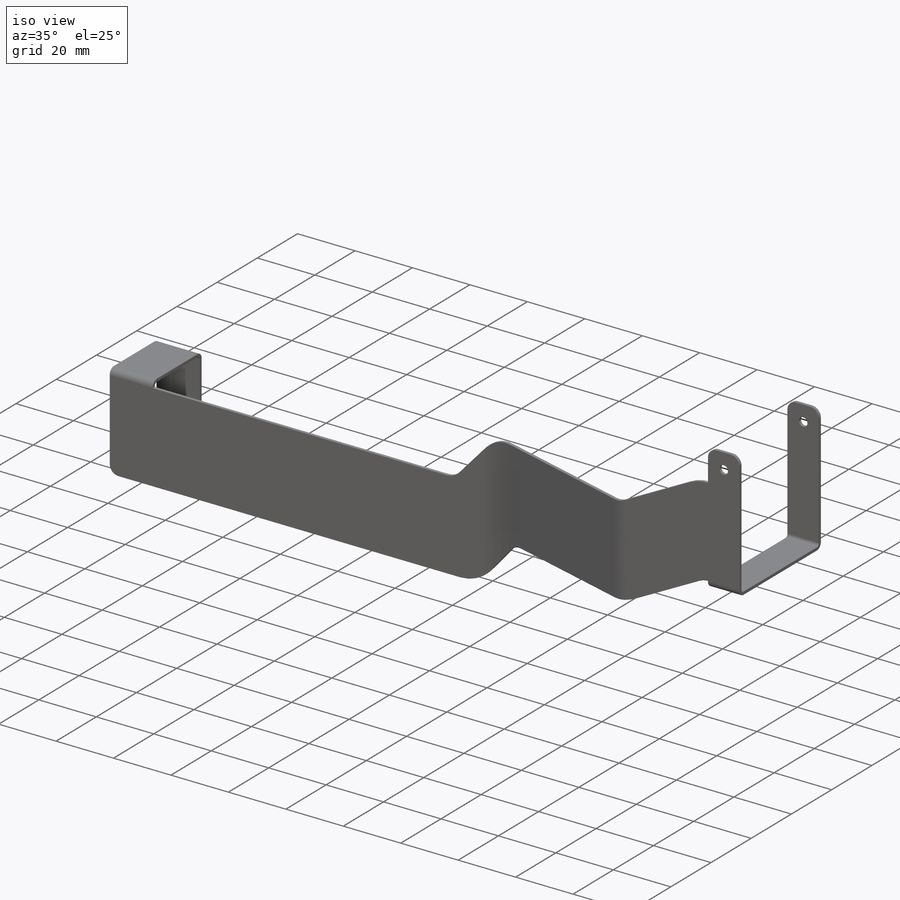
[diagram: iso view]
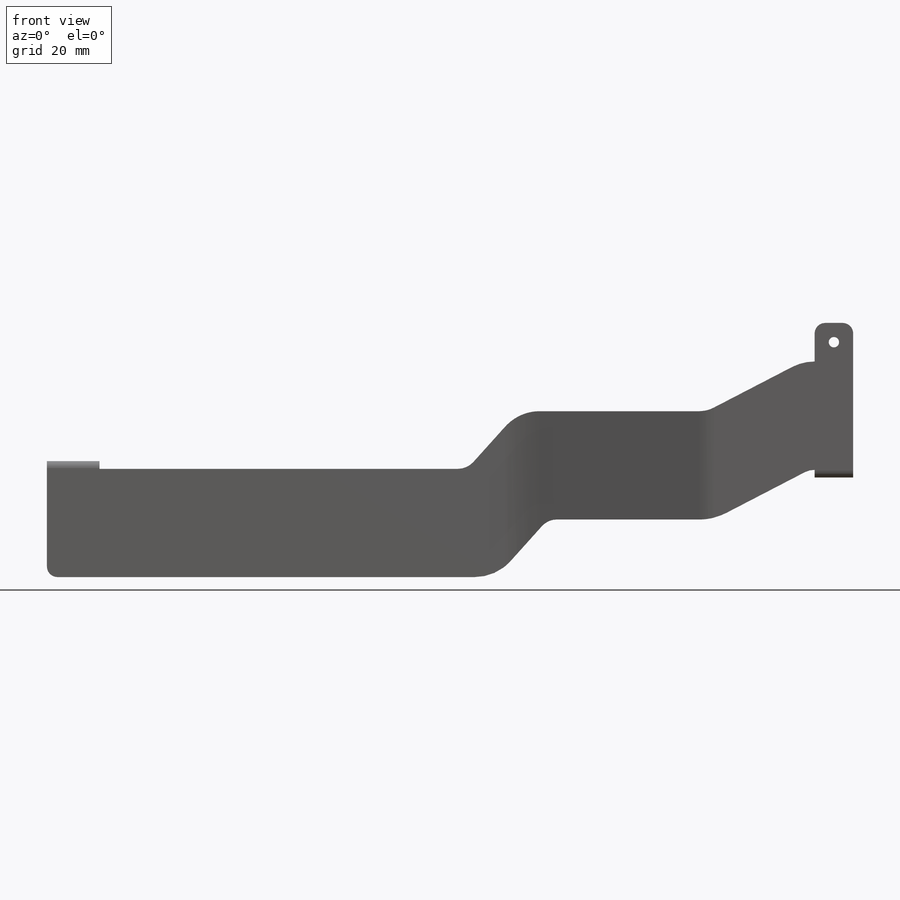
[diagram: front view]
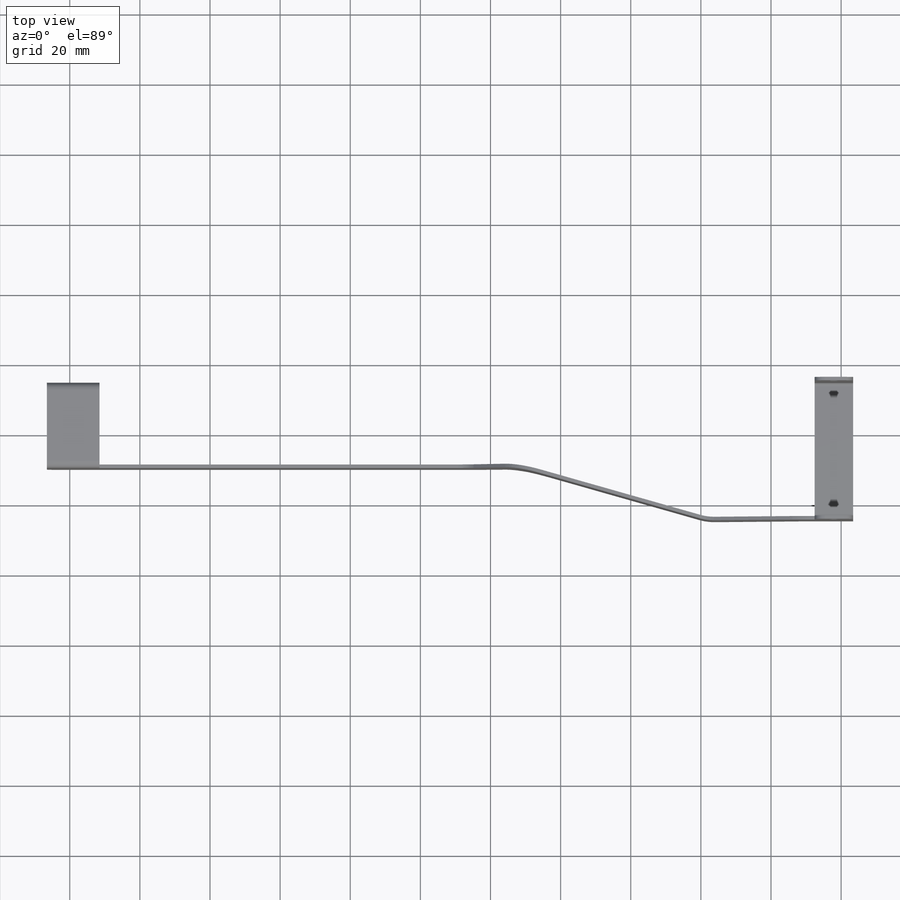
[diagram: top view]
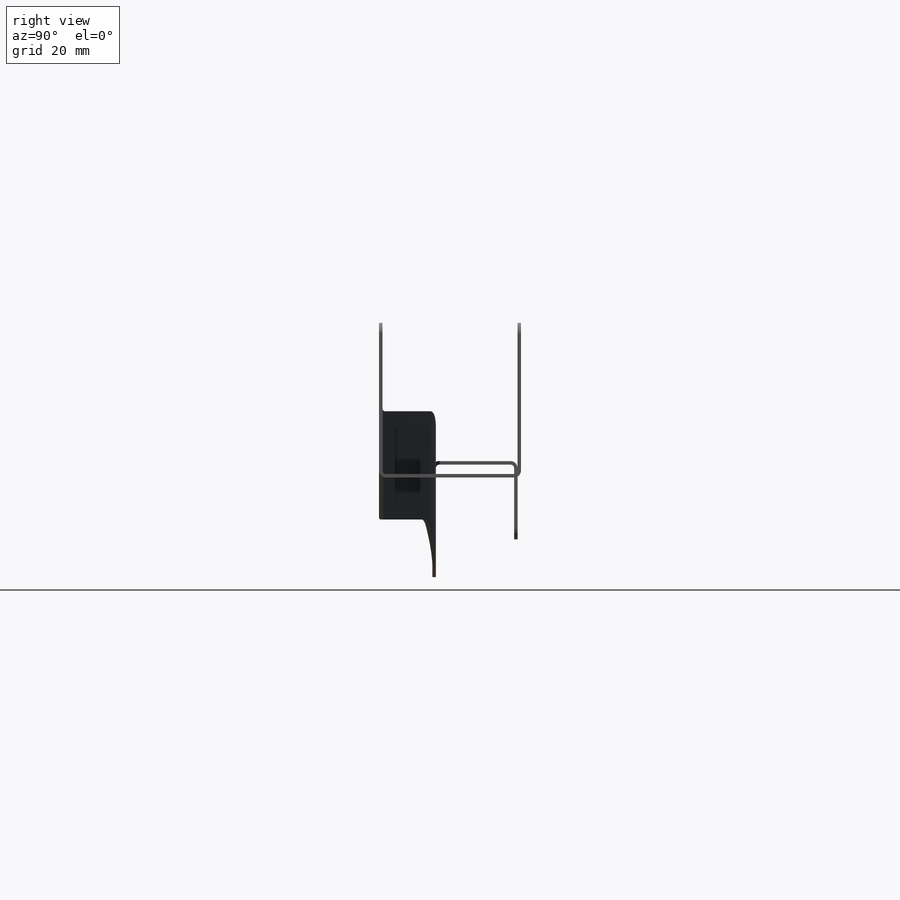
[diagram: right view]
SOLIDWORKS PART (.sldprt)
format: sldprt  version: not decoded by parser v0  size: 301,056 bytes
history: native  units: mm
features: sketch x5, cut_extrude x2, fillet x2, material x1 (+11 scaffold rows collapsed)
feature tree (21):
  scaffold x11  (default folders/planes/origin — collapsed)
  material  "Material <not specified>"
  sketch  "Sketch1"  dims[D1=200.0mm D5=1.0mm D6=1.0mm D7=5.0mm]
  sketch  "Sketch2"  dims[D1=122.0mm]
  cut_extrude  "Cut-Extrude1"  Depth=108mm
  sketch  "Sketch3"  dims[D3=2.0mm D1=40.5mm D2=2.2mm D5=1.0mm D6=1.0mm D7=5.0mm]
  sketch  "Sketch4"
  cut_extrude  "Cut-Extrude2"  Depth=108mm
  fillet  "Fillet1"  Radius=3mm
  sketch  "Sketch5"  dims[c1.D2=2.0mm c1.D1=2.2mm c1.D3=24.3mm c1.D4=~20.316504mm c2.D1=15.0mm c2.D5=1.0mm c2.D6=1.0mm c2.D7=5.0mm]
  fillet  "Fillet2"  Radius=3mm
decode coverage: 8 of 9 modeling features carry decoded parameters
note: ~ marks probable driven/reference dimensions
note: suppression state not decoded; provenance and decode notes live in map.json
